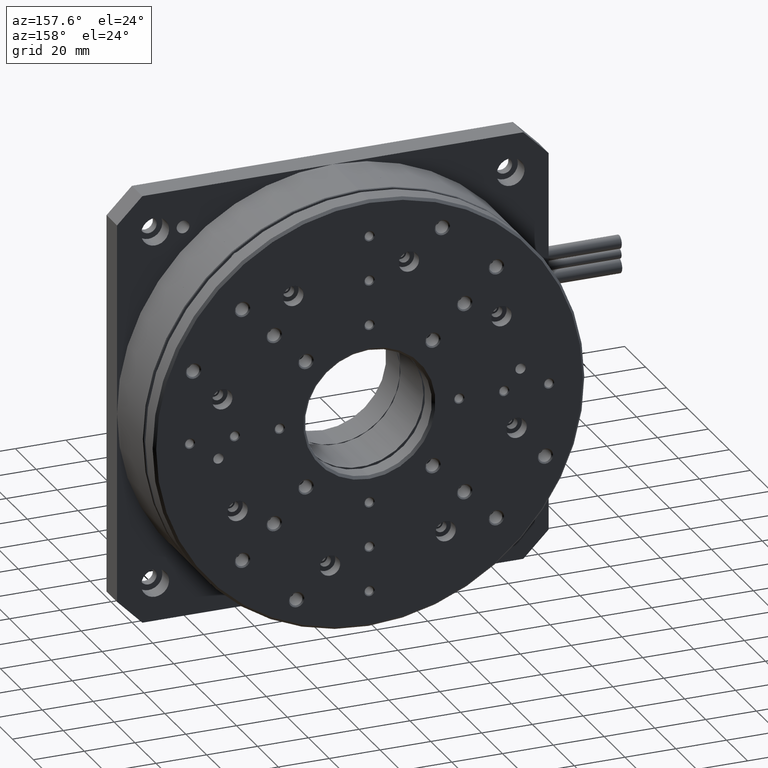
[diagram: clean part render]
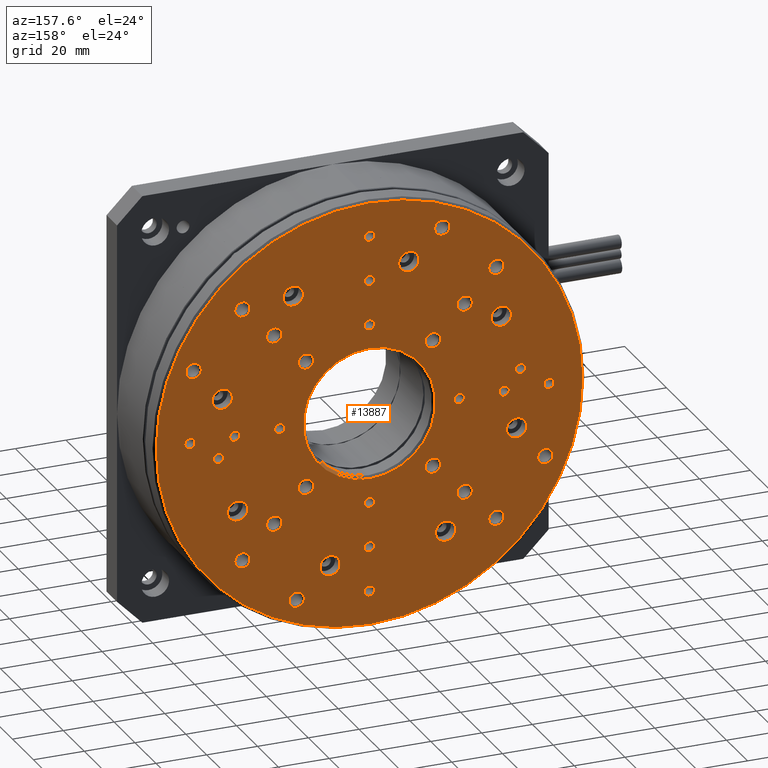
[diagram: same view with one face highlighted and labeled with its STEP entity id]
A machine part, auxiliary view. The second image highlights one B-rep face of the part: STEP entity #13887.
In plain terms, the highlighted planar face has unit normal (0, 1, 0).
Its self-contained STEP definition (entity closure, byte-faithful):
#53 = VERTEX_POINT ( 'NONE', #14290 ) ;
#79 = VERTEX_POINT ( 'NONE', #22916 ) ;
#128 = ORIENTED_EDGE ( 'NONE', *, *, #10757, .T. ) ;
#180 = VERTEX_POINT ( 'NONE', #1823 ) ;
#212 = DIRECTION ( 'NONE',  ( 0.0000000000000000000, 0.0000000000000000000, 1.000000000000000000 ) ) ;
#231 = ORIENTED_EDGE ( 'NONE', *, *, #16137, .F. ) ;
#264 = CARTESIAN_POINT ( 'NONE',  ( 155.7106781186547600, 45.00000000000000700, 85.00000000000017100 ) ) ;
#280 = ORIENTED_EDGE ( 'NONE', *, *, #21225, .F. ) ;
#285 = FACE_BOUND ( 'NONE', #13943, .T. ) ;
#391 = EDGE_LOOP ( 'NONE', ( #19720, #20750 ) ) ;
#403 = CARTESIAN_POINT ( 'NONE',  ( 69.47085729384916400, 45.00000000000000700, 142.9555495773443600 ) ) ;
#450 = AXIS2_PLACEMENT_3D ( 'NONE', #18312, #18140, #3748 ) ;
#481 = ORIENTED_EDGE ( 'NONE', *, *, #2432, .F. ) ;
#533 = CARTESIAN_POINT ( 'NONE',  ( 85.00000000000001400, 45.00000000000000700, 120.3553390593275200 ) ) ;
#545 = EDGE_CURVE ( 'NONE', #19818, #20732, #3655, .T. ) ;
#610 = VERTEX_POINT ( 'NONE', #19120 ) ;
#653 = CARTESIAN_POINT ( 'NONE',  ( 138.0330085889910400, 45.00000000000000700, 87.02500000000016200 ) ) ;
#680 = CARTESIAN_POINT ( 'NONE',  ( 155.7106781186547600, 45.00000000000000700, 82.97500000000017900 ) ) ;
#752 = CARTESIAN_POINT ( 'NONE',  ( 85.00000000000001400, 45.00000000000000700, 122.3803390593275300 ) ) ;
#787 = CARTESIAN_POINT ( 'NONE',  ( 27.04445042265586700, 45.00000000000000700, 69.47085729384909300 ) ) ;
#799 = CARTESIAN_POINT ( 'NONE',  ( 15.70903506165353900, 45.00000000000000700, 56.29874257261836600 ) ) ;
#814 = CARTESIAN_POINT ( 'NONE',  ( 115.0000000000001000, 45.00000000000000700, 136.9615242270664300 ) ) ;
#831 = FACE_BOUND ( 'NONE', #11761, .T. ) ;
#843 = CARTESIAN_POINT ( 'NONE',  ( 138.0330085889910400, 45.00000000000000700, 82.97500000000016500 ) ) ;
#847 = EDGE_CURVE ( 'NONE', #10658, #13085, #8644, .T. ) ;
#848 = DIRECTION ( 'NONE',  ( 0.0000000000000000000, 0.0000000000000000000, 1.000000000000000000 ) ) ;
#863 = CIRCLE ( 'NONE', #11323, 3.999999999999989800 ) ;
#930 = AXIS2_PLACEMENT_3D ( 'NONE', #14554, #2105, #3838 ) ;
#953 = CARTESIAN_POINT ( 'NONE',  ( 60.00000000000002100, 45.00000000000000700, 113.0250000000001500 ) ) ;
#954 = CARTESIAN_POINT ( 'NONE',  ( 113.7012574273817500, 45.00000000000000700, 15.70903506165369200 ) ) ;
#960 = CIRCLE ( 'NONE', #10569, 3.024999999999999900 ) ;
#962 = CARTESIAN_POINT ( 'NONE',  ( 85.00000000000001400, 45.00000000000000700, 120.3553390593275200 ) ) ;
#967 = AXIS2_PLACEMENT_3D ( 'NONE', #7008, #13977, #16247 ) ;
#981 = CIRCLE ( 'NONE', #19190, 2.024999999999999000 ) ;
#984 = EDGE_CURVE ( 'NONE', #13085, #10658, #11907, .T. ) ;
#1012 = EDGE_LOOP ( 'NONE', ( #16376, #12469 ) ) ;
#1013 = VERTEX_POINT ( 'NONE', #6773 ) ;
#1036 = DIRECTION ( 'NONE',  ( -0.0000000000000000000, 1.000000000000000000, -0.0000000000000000000 ) ) ;
#1075 = VERTEX_POINT ( 'NONE', #12408 ) ;
#1109 = CIRCLE ( 'NONE', #5869, 2.024999999999999000 ) ;
#1164 = CIRCLE ( 'NONE', #12219, 3.999999999999996400 ) ;
#1196 = CARTESIAN_POINT ( 'NONE',  ( 47.49999999999987200, 45.00000000000000700, 122.5000000000001100 ) ) ;
#1218 = DIRECTION ( 'NONE',  ( 0.0000000000000000000, 0.0000000000000000000, 1.000000000000000000 ) ) ;
#1223 = AXIS2_PLACEMENT_3D ( 'NONE', #8645, #17439, #15642 ) ;
#1348 = EDGE_CURVE ( 'NONE', #13677, #13671, #17161, .T. ) ;
#1357 = CARTESIAN_POINT ( 'NONE',  ( 85.00000000000001400, 45.00000000000000700, 85.00000000000014200 ) ) ;
#1382 = AXIS2_PLACEMENT_3D ( 'NONE', #9498, #4348, #5838 ) ;
#1385 = CIRCLE ( 'NONE', #13728, 2.024999999999999000 ) ;
#1421 = EDGE_CURVE ( 'NONE', #9537, #7804, #2354, .T. ) ;
#1535 = CARTESIAN_POINT ( 'NONE',  ( 142.9555495773442700, 45.00000000000000700, 100.5291427061507900 ) ) ;
#1540 = CIRCLE ( 'NONE', #3144, 3.024999999999999900 ) ;
#1542 = CIRCLE ( 'NONE', #12870, 3.024999999999999900 ) ;
#1664 = DIRECTION ( 'NONE',  ( 0.0000000000000000000, 0.0000000000000000000, 1.000000000000000000 ) ) ;
#1724 = EDGE_CURVE ( 'NONE', #19165, #9461, #8517, .T. ) ;
#1757 = DIRECTION ( 'NONE',  ( 0.0000000000000000000, 0.0000000000000000000, 1.000000000000000000 ) ) ;
#1823 = CARTESIAN_POINT ( 'NONE',  ( 135.0000000000000000, 45.00000000000000700, 31.97500000000014400 ) ) ;
#1852 = VERTEX_POINT ( 'NONE', #8083 ) ;
#1898 = AXIS2_PLACEMENT_3D ( 'NONE', #11731, #11665, #17065 ) ;
#1906 = EDGE_CURVE ( 'NONE', #11159, #79, #17952, .T. ) ;
#1958 = FACE_BOUND ( 'NONE', #20375, .T. ) ;
#1997 = CARTESIAN_POINT ( 'NONE',  ( 122.5000000000000900, 45.00000000000000700, 47.50000000000011400 ) ) ;
#2105 = DIRECTION ( 'NONE',  ( -0.0000000000000000000, 1.000000000000000000, -0.0000000000000000000 ) ) ;
#2111 = CIRCLE ( 'NONE', #3927, 3.024999999999999900 ) ;
#2209 = EDGE_CURVE ( 'NONE', #7804, #9537, #1109, .T. ) ;
#2227 = CARTESIAN_POINT ( 'NONE',  ( 122.5000000000000900, 45.00000000000000700, 44.47500000000011500 ) ) ;
#2296 = EDGE_CURVE ( 'NONE', #14961, #20285, #12312, .T. ) ;
#2354 = CIRCLE ( 'NONE', #15758, 2.024999999999999000 ) ;
#2428 = VERTEX_POINT ( 'NONE', #2558 ) ;
#2432 = EDGE_CURVE ( 'NONE', #12700, #13351, #23131, .T. ) ;
#2462 = AXIS2_PLACEMENT_3D ( 'NONE', #17031, #15687, #1664 ) ;
#2500 = EDGE_CURVE ( 'NONE', #5967, #7257, #17613, .T. ) ;
#2545 = DIRECTION ( 'NONE',  ( -0.0000000000000000000, 1.000000000000000000, -0.0000000000000000000 ) ) ;
#2558 = CARTESIAN_POINT ( 'NONE',  ( 110.0000000000000100, 45.00000000000000700, 56.97500000000013600 ) ) ;
#2623 = VERTEX_POINT ( 'NONE', #7134 ) ;
#2661 = DIRECTION ( 'NONE',  ( -0.0000000000000000000, 1.000000000000000000, -0.0000000000000000000 ) ) ;
#2700 = EDGE_LOOP ( 'NONE', ( #23175, #481 ) ) ;
#2736 = EDGE_CURVE ( 'NONE', #7439, #1075, #8637, .T. ) ;
#2788 = DIRECTION ( 'NONE',  ( 0.0000000000000000000, 0.0000000000000000000, 1.000000000000000000 ) ) ;
#2790 = CIRCLE ( 'NONE', #7291, 2.024999999999999000 ) ;
#2793 = DIRECTION ( 'NONE',  ( 0.0000000000000000000, 0.0000000000000000000, 1.000000000000000000 ) ) ;
#2796 = CARTESIAN_POINT ( 'NONE',  ( 154.2909649383464900, 45.00000000000000700, 116.7262574273819400 ) ) ;
#2860 = DIRECTION ( 'NONE',  ( 0.0000000000000000000, 0.0000000000000000000, 1.000000000000000000 ) ) ;
#2865 = CARTESIAN_POINT ( 'NONE',  ( 85.00000000000001400, 45.00000000000000700, 85.00000000000014200 ) ) ;
#2869 = AXIS2_PLACEMENT_3D ( 'NONE', #4977, #5141, #3279 ) ;
#2875 = DIRECTION ( 'NONE',  ( 0.0000000000000000000, 0.0000000000000000000, 1.000000000000000000 ) ) ;
#2906 = DIRECTION ( 'NONE',  ( -0.0000000000000000000, 1.000000000000000000, -0.0000000000000000000 ) ) ;
#2912 = EDGE_CURVE ( 'NONE', #22094, #5384, #863, .T. ) ;
#2945 = ORIENTED_EDGE ( 'NONE', *, *, #13293, .F. ) ;
#3044 = AXIS2_PLACEMENT_3D ( 'NONE', #2865, #15463, #22604 ) ;
#3071 = ORIENTED_EDGE ( 'NONE', *, *, #19645, .F. ) ;
#3078 = DIRECTION ( 'NONE',  ( -0.0000000000000000000, 1.000000000000000000, -0.0000000000000000000 ) ) ;
#3089 = FACE_BOUND ( 'NONE', #18592, .T. ) ;
#3090 = CARTESIAN_POINT ( 'NONE',  ( 85.00000000000002800, 45.00000000000000700, 138.0330085889911800 ) ) ;
#3104 = DIRECTION ( 'NONE',  ( -0.0000000000000000000, 1.000000000000000000, -0.0000000000000000000 ) ) ;
#3113 = DIRECTION ( 'NONE',  ( -0.0000000000000000000, 1.000000000000000000, -0.0000000000000000000 ) ) ;
#3119 = CIRCLE ( 'NONE', #21943, 2.024999999999999000 ) ;
#3144 = AXIS2_PLACEMENT_3D ( 'NONE', #15172, #13294, #4363 ) ;
#3159 = ORIENTED_EDGE ( 'NONE', *, *, #16001, .T. ) ;
#3241 = AXIS2_PLACEMENT_3D ( 'NONE', #4075, #14324, #12595 ) ;
#3279 = DIRECTION ( 'NONE',  ( 0.0000000000000000000, 0.0000000000000000000, 1.000000000000000000 ) ) ;
#3285 = AXIS2_PLACEMENT_3D ( 'NONE', #20284, #6168, #848 ) ;
#3320 = EDGE_CURVE ( 'NONE', #12052, #9029, #16745, .T. ) ;
#3343 = DIRECTION ( 'NONE',  ( 0.0000000000000000000, 1.000000000000000000, 0.0000000000000000000 ) ) ;
#3366 = FACE_BOUND ( 'NONE', #14166, .T. ) ;
#3406 = VERTEX_POINT ( 'NONE', #752 ) ;
#3480 = DIRECTION ( 'NONE',  ( -0.0000000000000000000, 1.000000000000000000, -0.0000000000000000000 ) ) ;
#3577 = DIRECTION ( 'NONE',  ( -0.0000000000000000000, 1.000000000000000000, -0.0000000000000000000 ) ) ;
#3583 = ORIENTED_EDGE ( 'NONE', *, *, #8347, .F. ) ;
#3611 = DIRECTION ( 'NONE',  ( 0.0000000000000000000, 0.0000000000000000000, 1.000000000000000000 ) ) ;
#3622 = CARTESIAN_POINT ( 'NONE',  ( 85.00000000000001400, 45.00000000000000700, 49.64466094067278600 ) ) ;
#3655 = CIRCLE ( 'NONE', #10963, 3.024999999999999900 ) ;
#3658 = DIRECTION ( 'NONE',  ( -0.0000000000000000000, 1.000000000000000000, -0.0000000000000000000 ) ) ;
#3679 = EDGE_LOOP ( 'NONE', ( #9531, #14556 ) ) ;
#3748 = DIRECTION ( 'NONE',  ( 0.0000000000000000000, 0.0000000000000000000, 1.000000000000000000 ) ) ;
#3753 = CARTESIAN_POINT ( 'NONE',  ( 85.00000000000001400, 45.00000000000000700, 85.00000000000014200 ) ) ;
#3832 = EDGE_LOOP ( 'NONE', ( #14351, #8607 ) ) ;
#3838 = DIRECTION ( 'NONE',  ( 0.0000000000000000000, 0.0000000000000000000, 1.000000000000000000 ) ) ;
#3868 = CIRCLE ( 'NONE', #20031, 2.024999999999999000 ) ;
#3926 = FACE_BOUND ( 'NONE', #23197, .T. ) ;
#3927 = AXIS2_PLACEMENT_3D ( 'NONE', #4279, #16796, #11425 ) ;
#3959 = CARTESIAN_POINT ( 'NONE',  ( 144.4866916824286400, 45.00000000000000700, 77.16842846679698200 ) ) ;
#3980 = CARTESIAN_POINT ( 'NONE',  ( 135.0000000000000000, 45.00000000000000700, 135.0000000000001400 ) ) ;
#3983 = CIRCLE ( 'NONE', #10183, 3.999999999999996400 ) ;
#4026 = CARTESIAN_POINT ( 'NONE',  ( 122.5000000000000900, 45.00000000000000700, 50.52500000000011200 ) ) ;
#4075 = CARTESIAN_POINT ( 'NONE',  ( 35.00000000000000700, 45.00000000000000700, 35.00000000000014200 ) ) ;
#4097 = CIRCLE ( 'NONE', #4768, 3.024999999999999900 ) ;
#4115 = VERTEX_POINT ( 'NONE', #18588 ) ;
#4167 = CARTESIAN_POINT ( 'NONE',  ( 31.96699141100899100, 45.00000000000000700, 85.00000000000012800 ) ) ;
#4169 = VERTEX_POINT ( 'NONE', #20623 ) ;
#4210 = FACE_BOUND ( 'NONE', #1012, .T. ) ;
#4225 = CIRCLE ( 'NONE', #7877, 2.000000000000001800 ) ;
#4261 = DIRECTION ( 'NONE',  ( 0.0000000000000000000, 0.0000000000000000000, 1.000000000000000000 ) ) ;
#4279 = CARTESIAN_POINT ( 'NONE',  ( 47.49999999999987200, 45.00000000000000700, 47.50000000000012100 ) ) ;
#4287 = CARTESIAN_POINT ( 'NONE',  ( 85.00000000000002800, 45.00000000000000700, 14.28932188134540700 ) ) ;
#4328 = DIRECTION ( 'NONE',  ( 0.0000000000000000000, 0.0000000000000000000, 1.000000000000000000 ) ) ;
#4348 = DIRECTION ( 'NONE',  ( -0.0000000000000000000, -1.000000000000000000, -0.0000000000000000000 ) ) ;
#4363 = DIRECTION ( 'NONE',  ( 0.0000000000000000000, 0.0000000000000000000, 1.000000000000000000 ) ) ;
#4396 = AXIS2_PLACEMENT_3D ( 'NONE', #8262, #6506, #17153 ) ;
#4400 = AXIS2_PLACEMENT_3D ( 'NONE', #814, #13330, #6444 ) ;
#4437 = EDGE_CURVE ( 'NONE', #9414, #23000, #21793, .T. ) ;
#4461 = AXIS2_PLACEMENT_3D ( 'NONE', #22660, #8264, #15590 ) ;
#4466 = FACE_BOUND ( 'NONE', #6873, .T. ) ;
#4484 = EDGE_LOOP ( 'NONE', ( #6687, #15499 ) ) ;
#4494 = AXIS2_PLACEMENT_3D ( 'NONE', #16618, #18282, #20084 ) ;
#4506 = ORIENTED_EDGE ( 'NONE', *, *, #7885, .F. ) ;
#4564 = CIRCLE ( 'NONE', #4494, 2.024999999999999000 ) ;
#4637 = EDGE_CURVE ( 'NONE', #2428, #17279, #6912, .T. ) ;
#4655 = DIRECTION ( 'NONE',  ( -0.0000000000000000000, 1.000000000000000000, -0.0000000000000000000 ) ) ;
#4672 = EDGE_CURVE ( 'NONE', #18573, #1852, #16147, .T. ) ;
#4673 = AXIS2_PLACEMENT_3D ( 'NONE', #1196, #21009, #10377 ) ;
#4674 = CIRCLE ( 'NONE', #13899, 3.025000000000007000 ) ;
#4691 = DIRECTION ( 'NONE',  ( 0.0000000000000000000, 0.0000000000000000000, 1.000000000000000000 ) ) ;
#4711 = AXIS2_PLACEMENT_3D ( 'NONE', #13580, #4655, #2875 ) ;
#4723 = CIRCLE ( 'NONE', #7032, 2.024999999999999000 ) ;
#4768 = AXIS2_PLACEMENT_3D ( 'NONE', #5925, #7754, #6006 ) ;
#4792 = CARTESIAN_POINT ( 'NONE',  ( 35.00000000000000700, 45.00000000000000700, 131.9750000000001400 ) ) ;
#4799 = AXIS2_PLACEMENT_3D ( 'NONE', #9500, #11275, #18393 ) ;
#4827 = ORIENTED_EDGE ( 'NONE', *, *, #15560, .F. ) ;
#4855 = CARTESIAN_POINT ( 'NONE',  ( 54.99999999999993600, 45.00000000000000700, 33.03847577293387200 ) ) ;
#4873 = AXIS2_PLACEMENT_3D ( 'NONE', #3959, #21880, #6368 ) ;
#4874 = AXIS2_PLACEMENT_3D ( 'NONE', #14054, #3343, #17646 ) ;
#4885 = CIRCLE ( 'NONE', #19715, 3.024999999999999900 ) ;
#4892 = ORIENTED_EDGE ( 'NONE', *, *, #19551, .F. ) ;
#4977 = CARTESIAN_POINT ( 'NONE',  ( 35.00000000000000700, 45.00000000000000700, 135.0000000000001400 ) ) ;
#5029 = CIRCLE ( 'NONE', #4874, 2.000000000000001800 ) ;
#5032 = DIRECTION ( 'NONE',  ( -0.0000000000000000000, 1.000000000000000000, -0.0000000000000000000 ) ) ;
#5033 = EDGE_CURVE ( 'NONE', #17848, #22119, #8293, .T. ) ;
#5092 = VERTEX_POINT ( 'NONE', #14845 ) ;
#5141 = DIRECTION ( 'NONE',  ( -0.0000000000000000000, 1.000000000000000000, -0.0000000000000000000 ) ) ;
#5153 = CARTESIAN_POINT ( 'NONE',  ( 25.51330831757140400, 45.00000000000000700, 92.83157153320326000 ) ) ;
#5205 = EDGE_LOOP ( 'NONE', ( #23041, #13305 ) ) ;
#5215 = CARTESIAN_POINT ( 'NONE',  ( 25.51330831757140400, 45.00000000000000700, 90.83157153320326000 ) ) ;
#5286 = CARTESIAN_POINT ( 'NONE',  ( 60.00000000000002800, 45.00000000000000700, 63.02500000000013400 ) ) ;
#5287 = ORIENTED_EDGE ( 'NONE', *, *, #11362, .F. ) ;
#5354 = CARTESIAN_POINT ( 'NONE',  ( 110.0000000000000100, 45.00000000000000700, 60.00000000000013500 ) ) ;
#5384 = VERTEX_POINT ( 'NONE', #23066 ) ;
#5437 = VERTEX_POINT ( 'NONE', #12558 ) ;
#5456 = AXIS2_PLACEMENT_3D ( 'NONE', #8087, #2906, #4691 ) ;
#5468 = EDGE_LOOP ( 'NONE', ( #13880, #14780 ) ) ;
#5497 = CARTESIAN_POINT ( 'NONE',  ( 56.29874257261823100, 45.00000000000000700, 157.3159649383466400 ) ) ;
#5509 = DIRECTION ( 'NONE',  ( -0.0000000000000000000, 1.000000000000000000, -0.0000000000000000000 ) ) ;
#5532 = DIRECTION ( 'NONE',  ( -0.0000000000000000000, -1.000000000000000000, -0.0000000000000000000 ) ) ;
#5573 = CIRCLE ( 'NONE', #16333, 3.024999999999999900 ) ;
#5584 = FACE_BOUND ( 'NONE', #22151, .T. ) ;
#5589 = EDGE_LOOP ( 'NONE', ( #11351, #2945 ) ) ;
#5680 = DIRECTION ( 'NONE',  ( 0.0000000000000000000, 0.0000000000000000000, 1.000000000000000000 ) ) ;
#5698 = CARTESIAN_POINT ( 'NONE',  ( 49.64466094067266500, 45.00000000000000700, 85.00000000000012800 ) ) ;
#5726 = CARTESIAN_POINT ( 'NONE',  ( 60.00000000000002800, 45.00000000000000700, 60.00000000000012800 ) ) ;
#5776 = DIRECTION ( 'NONE',  ( 0.0000000000000000000, 0.0000000000000000000, 1.000000000000000000 ) ) ;
#5838 = DIRECTION ( 'NONE',  ( 0.0000000000000000000, 0.0000000000000000000, 1.000000000000000000 ) ) ;
#5869 = AXIS2_PLACEMENT_3D ( 'NONE', #12754, #16188, #17986 ) ;
#5925 = CARTESIAN_POINT ( 'NONE',  ( 56.29874257261823100, 45.00000000000000700, 154.2909649383466300 ) ) ;
#5944 = ORIENTED_EDGE ( 'NONE', *, *, #17129, .F. ) ;
#5959 = DIRECTION ( 'NONE',  ( -0.0000000000000000000, 1.000000000000000000, -0.0000000000000000000 ) ) ;
#5967 = VERTEX_POINT ( 'NONE', #19282 ) ;
#6006 = DIRECTION ( 'NONE',  ( 0.0000000000000000000, 0.0000000000000000000, 1.000000000000000000 ) ) ;
#6018 = AXIS2_PLACEMENT_3D ( 'NONE', #799, #9756, #9671 ) ;
#6035 = CARTESIAN_POINT ( 'NONE',  ( 120.3553390593273900, 45.00000000000000700, 87.02500000000017600 ) ) ;
#6060 = CARTESIAN_POINT ( 'NONE',  ( 110.0000000000000100, 45.00000000000000700, 106.9750000000001400 ) ) ;
#6115 = ORIENTED_EDGE ( 'NONE', *, *, #1348, .F. ) ;
#6153 = CARTESIAN_POINT ( 'NONE',  ( 142.9555495773442700, 45.00000000000000700, 100.5291427061507900 ) ) ;
#6168 = DIRECTION ( 'NONE',  ( -0.0000000000000000000, 1.000000000000000000, -0.0000000000000000000 ) ) ;
#6170 = DIRECTION ( 'NONE',  ( 0.0000000000000000000, 0.0000000000000000000, 1.000000000000000000 ) ) ;
#6175 = DIRECTION ( 'NONE',  ( 0.0000000000000000000, 0.0000000000000000000, 1.000000000000000000 ) ) ;
#6251 = DIRECTION ( 'NONE',  ( -0.0000000000000000000, 1.000000000000000000, -0.0000000000000000000 ) ) ;
#6257 = EDGE_CURVE ( 'NONE', #21135, #10573, #5573, .T. ) ;
#6368 = DIRECTION ( 'NONE',  ( 0.0000000000000000000, 0.0000000000000000000, 1.000000000000000000 ) ) ;
#6371 = CIRCLE ( 'NONE', #4461, 2.024999999999999000 ) ;
#6379 = DIRECTION ( 'NONE',  ( -0.0000000000000000000, 1.000000000000000000, -0.0000000000000000000 ) ) ;
#6403 = EDGE_CURVE ( 'NONE', #13417, #19742, #4723, .T. ) ;
#6434 = DIRECTION ( 'NONE',  ( 0.0000000000000000000, 1.000000000000000000, 0.0000000000000000000 ) ) ;
#6444 = DIRECTION ( 'NONE',  ( 0.0000000000000000000, 0.0000000000000000000, 1.000000000000000000 ) ) ;
#6506 = DIRECTION ( 'NONE',  ( -0.0000000000000000000, 1.000000000000000000, -0.0000000000000000000 ) ) ;
#6607 = ORIENTED_EDGE ( 'NONE', *, *, #545, .F. ) ;
#6633 = CARTESIAN_POINT ( 'NONE',  ( 110.0000000000000100, 45.00000000000000700, 110.0000000000001400 ) ) ;
#6687 = ORIENTED_EDGE ( 'NONE', *, *, #2736, .F. ) ;
#6722 = FACE_BOUND ( 'NONE', #11703, .T. ) ;
#6773 = CARTESIAN_POINT ( 'NONE',  ( 85.00000000000001400, 45.00000000000000700, 51.66966094067278400 ) ) ;
#6865 = ORIENTED_EDGE ( 'NONE', *, *, #13086, .F. ) ;
#6873 = EDGE_LOOP ( 'NONE', ( #6115, #4827 ) ) ;
#6912 = CIRCLE ( 'NONE', #7466, 3.024999999999999900 ) ;
#6936 = EDGE_CURVE ( 'NONE', #13566, #21962, #11661, .T. ) ;
#6949 = DIRECTION ( 'NONE',  ( -0.0000000000000000000, 1.000000000000000000, -0.0000000000000000000 ) ) ;
#6979 = FACE_BOUND ( 'NONE', #9185, .T. ) ;
#6980 = EDGE_CURVE ( 'NONE', #20285, #14961, #10557, .T. ) ;
#7008 = CARTESIAN_POINT ( 'NONE',  ( 135.0000000000000000, 45.00000000000000700, 135.0000000000001400 ) ) ;
#7032 = AXIS2_PLACEMENT_3D ( 'NONE', #8990, #8830, #8754 ) ;
#7122 = EDGE_CURVE ( 'NONE', #15314, #4169, #10260, .T. ) ;
#7134 = CARTESIAN_POINT ( 'NONE',  ( 85.00000000000002800, 45.00000000000000700, 136.0080085889911700 ) ) ;
#7191 = EDGE_CURVE ( 'NONE', #1852, #18573, #2111, .T. ) ;
#7192 = CARTESIAN_POINT ( 'NONE',  ( 31.96699141100899100, 45.00000000000000700, 87.02500000000013400 ) ) ;
#7257 = VERTEX_POINT ( 'NONE', #13358 ) ;
#7291 = AXIS2_PLACEMENT_3D ( 'NONE', #962, #20628, #13331 ) ;
#7338 = EDGE_CURVE ( 'NONE', #18134, #13045, #4885, .T. ) ;
#7343 = DIRECTION ( 'NONE',  ( 0.0000000000000000000, 0.0000000000000000000, 1.000000000000000000 ) ) ;
#7378 = CARTESIAN_POINT ( 'NONE',  ( 155.7106781186547600, 45.00000000000000700, 87.02500000000017600 ) ) ;
#7381 = VERTEX_POINT ( 'NONE', #15313 ) ;
#7408 = CARTESIAN_POINT ( 'NONE',  ( 33.03847577293385000, 45.00000000000000700, 119.0000000000004100 ) ) ;
#7439 = VERTEX_POINT ( 'NONE', #8700 ) ;
#7449 = ORIENTED_EDGE ( 'NONE', *, *, #14770, .F. ) ;
#7453 = PLANE ( 'NONE',  #12834 ) ;
#7454 = EDGE_CURVE ( 'NONE', #180, #14911, #960, .T. ) ;
#7461 = VERTEX_POINT ( 'NONE', #5286 ) ;
#7466 = AXIS2_PLACEMENT_3D ( 'NONE', #18946, #11811, #22237 ) ;
#7469 = EDGE_LOOP ( 'NONE', ( #14408, #20297 ) ) ;
#7528 = VERTEX_POINT ( 'NONE', #12567 ) ;
#7559 = DIRECTION ( 'NONE',  ( -0.0000000000000000000, 1.000000000000000000, -0.0000000000000000000 ) ) ;
#7658 = EDGE_LOOP ( 'NONE', ( #16062, #20249 ) ) ;
#7674 = EDGE_LOOP ( 'NONE', ( #13359, #13766 ) ) ;
#7728 = ORIENTED_EDGE ( 'NONE', *, *, #19307, .F. ) ;
#7754 = DIRECTION ( 'NONE',  ( -0.0000000000000000000, 1.000000000000000000, -0.0000000000000000000 ) ) ;
#7804 = VERTEX_POINT ( 'NONE', #8107 ) ;
#7858 = FACE_BOUND ( 'NONE', #5589, .T. ) ;
#7877 = AXIS2_PLACEMENT_3D ( 'NONE', #5153, #23101, #3611 ) ;
#7885 = EDGE_CURVE ( 'NONE', #9433, #23257, #17440, .T. ) ;
#7941 = CIRCLE ( 'NONE', #22670, 84.00000000000005700 ) ;
#7953 = CARTESIAN_POINT ( 'NONE',  ( 85.00000000000002800, 45.00000000000000700, 138.0330085889911800 ) ) ;
#8055 = ORIENTED_EDGE ( 'NONE', *, *, #22183, .F. ) ;
#8083 = CARTESIAN_POINT ( 'NONE',  ( 47.49999999999987200, 45.00000000000000700, 50.52500000000011900 ) ) ;
#8087 = CARTESIAN_POINT ( 'NONE',  ( 100.5291427061504700, 45.00000000000000700, 27.04445042265583900 ) ) ;
#8100 = CARTESIAN_POINT ( 'NONE',  ( 85.00000000000001400, 45.00000000000000700, 29.94199141100911600 ) ) ;
#8104 = VERTEX_POINT ( 'NONE', #9599 ) ;
#8107 = CARTESIAN_POINT ( 'NONE',  ( 85.00000000000001400, 45.00000000000000700, 33.99199141100911700 ) ) ;
#8132 = FACE_BOUND ( 'NONE', #20702, .T. ) ;
#8216 = CARTESIAN_POINT ( 'NONE',  ( 85.00000000000002800, 45.00000000000000700, 16.31432188134540700 ) ) ;
#8262 = CARTESIAN_POINT ( 'NONE',  ( 100.5291427061504700, 45.00000000000000700, 27.04445042265583900 ) ) ;
#8264 = DIRECTION ( 'NONE',  ( -0.0000000000000000000, 1.000000000000000000, -0.0000000000000000000 ) ) ;
#8293 = CIRCLE ( 'NONE', #450, 2.024999999999999000 ) ;
#8306 = EDGE_CURVE ( 'NONE', #21198, #8104, #16012, .T. ) ;
#8347 = EDGE_CURVE ( 'NONE', #14063, #4115, #1164, .T. ) ;
#8361 = CARTESIAN_POINT ( 'NONE',  ( 100.5291427061504700, 45.00000000000000700, 31.04445042265583900 ) ) ;
#8423 = CIRCLE ( 'NONE', #15027, 3.024999999999999900 ) ;
#8436 = ORIENTED_EDGE ( 'NONE', *, *, #16489, .F. ) ;
#8437 = FACE_BOUND ( 'NONE', #4484, .T. ) ;
#8517 = CIRCLE ( 'NONE', #12326, 3.024999999999999900 ) ;
#8544 = ORIENTED_EDGE ( 'NONE', *, *, #7122, .F. ) ;
#8549 = CARTESIAN_POINT ( 'NONE',  ( 122.5000000000000900, 45.00000000000000700, 122.5000000000001100 ) ) ;
#8552 = EDGE_CURVE ( 'NONE', #10471, #14656, #4225, .T. ) ;
#8562 = ORIENTED_EDGE ( 'NONE', *, *, #20818, .F. ) ;
#8578 = DIRECTION ( 'NONE',  ( -0.0000000000000000000, 1.000000000000000000, -0.0000000000000000000 ) ) ;
#8607 = ORIENTED_EDGE ( 'NONE', *, *, #13288, .F. ) ;
#8631 = DIRECTION ( 'NONE',  ( 0.0000000000000000000, 0.0000000000000000000, 1.000000000000000000 ) ) ;
#8637 = CIRCLE ( 'NONE', #14152, 4.000000000000003600 ) ;
#8644 = CIRCLE ( 'NONE', #14257, 3.024999999999999900 ) ;
#8645 = CARTESIAN_POINT ( 'NONE',  ( 120.3553390593273900, 45.00000000000000700, 85.00000000000017100 ) ) ;
#8671 = CARTESIAN_POINT ( 'NONE',  ( 33.03847577293385000, 45.00000000000000700, 115.0000000000004100 ) ) ;
#8700 = CARTESIAN_POINT ( 'NONE',  ( 69.47085729384916400, 45.00000000000000700, 146.9555495773443600 ) ) ;
#8754 = DIRECTION ( 'NONE',  ( 0.0000000000000000000, 0.0000000000000000000, 1.000000000000000000 ) ) ;
#8830 = DIRECTION ( 'NONE',  ( -0.0000000000000000000, 1.000000000000000000, -0.0000000000000000000 ) ) ;
#8933 = EDGE_LOOP ( 'NONE', ( #17906, #20057 ) ) ;
#8990 = CARTESIAN_POINT ( 'NONE',  ( 138.0330085889910400, 45.00000000000000700, 85.00000000000015600 ) ) ;
#8999 = ORIENTED_EDGE ( 'NONE', *, *, #6257, .F. ) ;
#9002 = EDGE_CURVE ( 'NONE', #22658, #610, #16226, .T. ) ;
#9009 = AXIS2_PLACEMENT_3D ( 'NONE', #9245, #7559, #20088 ) ;
#9029 = VERTEX_POINT ( 'NONE', #11290 ) ;
#9140 = DIRECTION ( 'NONE',  ( -0.0000000000000000000, 1.000000000000000000, -0.0000000000000000000 ) ) ;
#9185 = EDGE_LOOP ( 'NONE', ( #19971, #18904 ) ) ;
#9203 = CARTESIAN_POINT ( 'NONE',  ( 138.0330085889910400, 45.00000000000000700, 85.00000000000015600 ) ) ;
#9245 = CARTESIAN_POINT ( 'NONE',  ( 47.49999999999987200, 45.00000000000000700, 122.5000000000001100 ) ) ;
#9255 = CARTESIAN_POINT ( 'NONE',  ( 85.00000000000001400, 45.00000000000000700, 59.00000000000020600 ) ) ;
#9264 = EDGE_CURVE ( 'NONE', #17279, #2428, #19564, .T. ) ;
#9289 = FACE_BOUND ( 'NONE', #7469, .T. ) ;
#9343 = CARTESIAN_POINT ( 'NONE',  ( 47.49999999999987200, 45.00000000000000700, 44.47500000000011500 ) ) ;
#9372 = EDGE_LOOP ( 'NONE', ( #16573, #6865 ) ) ;
#9375 = EDGE_LOOP ( 'NONE', ( #18834, #20043 ) ) ;
#9379 = DIRECTION ( 'NONE',  ( 0.0000000000000000000, 0.0000000000000000000, 1.000000000000000000 ) ) ;
#9408 = CIRCLE ( 'NONE', #11253, 2.024999999999999000 ) ;
#9410 = CARTESIAN_POINT ( 'NONE',  ( 60.00000000000002100, 45.00000000000000700, 110.0000000000001600 ) ) ;
#9414 = VERTEX_POINT ( 'NONE', #12939 ) ;
#9429 = EDGE_CURVE ( 'NONE', #7461, #12482, #4674, .T. ) ;
#9433 = VERTEX_POINT ( 'NONE', #19928 ) ;
#9453 = EDGE_LOOP ( 'NONE', ( #4892, #15335 ) ) ;
#9460 = EDGE_LOOP ( 'NONE', ( #9984, #17759 ) ) ;
#9461 = VERTEX_POINT ( 'NONE', #2227 ) ;
#9498 = CARTESIAN_POINT ( 'NONE',  ( 85.00000000000001400, 45.00000000000000700, 85.00000000000014200 ) ) ;
#9500 = CARTESIAN_POINT ( 'NONE',  ( 56.29874257261823100, 45.00000000000000700, 154.2909649383466300 ) ) ;
#9523 = AXIS2_PLACEMENT_3D ( 'NONE', #8671, #3078, #10142 ) ;
#9531 = ORIENTED_EDGE ( 'NONE', *, *, #9429, .F. ) ;
#9537 = VERTEX_POINT ( 'NONE', #8100 ) ;
#9555 = AXIS2_PLACEMENT_3D ( 'NONE', #6153, #15002, #2793 ) ;
#9557 = EDGE_CURVE ( 'NONE', #21962, #13566, #13931, .T. ) ;
#9599 = CARTESIAN_POINT ( 'NONE',  ( 100.5291427061504700, 45.00000000000000700, 23.04445042265583900 ) ) ;
#9605 = DIRECTION ( 'NONE',  ( -0.0000000000000000000, 1.000000000000000000, -0.0000000000000000000 ) ) ;
#9610 = CARTESIAN_POINT ( 'NONE',  ( 35.00000000000000700, 45.00000000000000700, 135.0000000000001400 ) ) ;
#9646 = AXIS2_PLACEMENT_3D ( 'NONE', #9203, #21689, #16431 ) ;
#9658 = EDGE_CURVE ( 'NONE', #7528, #1013, #6371, .T. ) ;
#9660 = DIRECTION ( 'NONE',  ( -0.0000000000000000000, 1.000000000000000000, -0.0000000000000000000 ) ) ;
#9671 = DIRECTION ( 'NONE',  ( 0.0000000000000000000, 0.0000000000000000000, 1.000000000000000000 ) ) ;
#9681 = CARTESIAN_POINT ( 'NONE',  ( 35.00000000000000700, 45.00000000000000700, 38.02500000000014100 ) ) ;
#9744 = CARTESIAN_POINT ( 'NONE',  ( 142.9555495773442700, 45.00000000000000700, 104.5291427061507900 ) ) ;
#9756 = DIRECTION ( 'NONE',  ( -0.0000000000000000000, 1.000000000000000000, -0.0000000000000000000 ) ) ;
#9811 = DIRECTION ( 'NONE',  ( 0.0000000000000000000, 0.0000000000000000000, 1.000000000000000000 ) ) ;
#9828 = FACE_BOUND ( 'NONE', #2700, .T. ) ;
#9966 = ORIENTED_EDGE ( 'NONE', *, *, #1906, .F. ) ;
#9984 = ORIENTED_EDGE ( 'NONE', *, *, #22935, .F. ) ;
#10053 = DIRECTION ( 'NONE',  ( 0.0000000000000000000, 0.0000000000000000000, 1.000000000000000000 ) ) ;
#10086 = CARTESIAN_POINT ( 'NONE',  ( 154.2909649383464900, 45.00000000000000700, 113.7012574273819300 ) ) ;
#10092 = DIRECTION ( 'NONE',  ( -0.0000000000000000000, 1.000000000000000000, -0.0000000000000000000 ) ) ;
#10130 = CARTESIAN_POINT ( 'NONE',  ( 15.70903506165353900, 45.00000000000000700, 53.27374257261836700 ) ) ;
#10142 = DIRECTION ( 'NONE',  ( 0.0000000000000000000, 0.0000000000000000000, 1.000000000000000000 ) ) ;
#10149 = DIRECTION ( 'NONE',  ( 0.0000000000000000000, 0.0000000000000000000, 1.000000000000000000 ) ) ;
#10166 = DIRECTION ( 'NONE',  ( -0.0000000000000000000, 1.000000000000000000, -0.0000000000000000000 ) ) ;
#10168 = DIRECTION ( 'NONE',  ( 0.0000000000000000000, 0.0000000000000000000, 1.000000000000000000 ) ) ;
#10169 = CARTESIAN_POINT ( 'NONE',  ( 14.28932188134528200, 45.00000000000000700, 85.00000000000011400 ) ) ;
#10183 = AXIS2_PLACEMENT_3D ( 'NONE', #17757, #23272, #21380 ) ;
#10242 = CIRCLE ( 'NONE', #19260, 2.024999999999999000 ) ;
#10254 = DIRECTION ( 'NONE',  ( 0.0000000000000000000, 0.0000000000000000000, 1.000000000000000000 ) ) ;
#10260 = CIRCLE ( 'NONE', #4799, 3.024999999999999900 ) ;
#10282 = DIRECTION ( 'NONE',  ( -0.0000000000000000000, 1.000000000000000000, -0.0000000000000000000 ) ) ;
#10303 = EDGE_CURVE ( 'NONE', #79, #11159, #981, .T. ) ;
#10345 = CARTESIAN_POINT ( 'NONE',  ( 120.3553390593273900, 45.00000000000000700, 85.00000000000017100 ) ) ;
#10377 = DIRECTION ( 'NONE',  ( 0.0000000000000000000, 0.0000000000000000000, 1.000000000000000000 ) ) ;
#10383 = FACE_BOUND ( 'NONE', #9375, .T. ) ;
#10436 = CARTESIAN_POINT ( 'NONE',  ( 136.9615242270659800, 45.00000000000000700, 54.99999999999952400 ) ) ;
#10471 = VERTEX_POINT ( 'NONE', #20106 ) ;
#10554 = CARTESIAN_POINT ( 'NONE',  ( 14.28932188134528200, 45.00000000000000700, 87.02500000000011900 ) ) ;
#10557 = CIRCLE ( 'NONE', #15920, 25.99999999999994000 ) ;
#10569 = AXIS2_PLACEMENT_3D ( 'NONE', #12183, #21186, #21267 ) ;
#10573 = VERTEX_POINT ( 'NONE', #6060 ) ;
#10582 = CIRCLE ( 'NONE', #9646, 2.024999999999999000 ) ;
#10598 = AXIS2_PLACEMENT_3D ( 'NONE', #1997, #3577, #212 ) ;
#10614 = EDGE_CURVE ( 'NONE', #1075, #7439, #22545, .T. ) ;
#10652 = DIRECTION ( 'NONE',  ( 0.0000000000000000000, 0.0000000000000000000, 1.000000000000000000 ) ) ;
#10658 = VERTEX_POINT ( 'NONE', #18908 ) ;
#10685 = CIRCLE ( 'NONE', #3044, 84.00000000000005700 ) ;
#10757 = EDGE_CURVE ( 'NONE', #5092, #5437, #7941, .T. ) ;
#10761 = DIRECTION ( 'NONE',  ( 0.0000000000000000000, 0.0000000000000000000, 1.000000000000000000 ) ) ;
#10877 = ORIENTED_EDGE ( 'NONE', *, *, #13560, .F. ) ;
#10963 = AXIS2_PLACEMENT_3D ( 'NONE', #22963, #17463, #15670 ) ;
#10989 = AXIS2_PLACEMENT_3D ( 'NONE', #9610, #5959, #22108 ) ;
#11144 = DIRECTION ( 'NONE',  ( 0.0000000000000000000, -0.0000000000000000000, 1.000000000000000000 ) ) ;
#11159 = VERTEX_POINT ( 'NONE', #6035 ) ;
#11168 = ORIENTED_EDGE ( 'NONE', *, *, #19160, .F. ) ;
#11209 = EDGE_LOOP ( 'NONE', ( #8999, #20060 ) ) ;
#11253 = AXIS2_PLACEMENT_3D ( 'NONE', #12503, #5509, #7343 ) ;
#11275 = DIRECTION ( 'NONE',  ( -0.0000000000000000000, 1.000000000000000000, -0.0000000000000000000 ) ) ;
#11290 = CARTESIAN_POINT ( 'NONE',  ( 135.0000000000000000, 45.00000000000000700, 131.9750000000001400 ) ) ;
#11310 = DIRECTION ( 'NONE',  ( 0.0000000000000000000, 0.0000000000000000000, 1.000000000000000000 ) ) ;
#11323 = AXIS2_PLACEMENT_3D ( 'NONE', #787, #13304, #9811 ) ;
#11328 = EDGE_LOOP ( 'NONE', ( #21987, #8055 ) ) ;
#11334 = CIRCLE ( 'NONE', #6018, 3.024999999999999900 ) ;
#11351 = ORIENTED_EDGE ( 'NONE', *, *, #1724, .F. ) ;
#11362 = EDGE_CURVE ( 'NONE', #23257, #9433, #18485, .T. ) ;
#11425 = DIRECTION ( 'NONE',  ( 0.0000000000000000000, 0.0000000000000000000, 1.000000000000000000 ) ) ;
#11471 = CARTESIAN_POINT ( 'NONE',  ( 113.7012574273817500, 45.00000000000000700, 18.73403506165369200 ) ) ;
#11489 = FACE_OUTER_BOUND ( 'NONE', #13839, .T. ) ;
#11499 = FACE_BOUND ( 'NONE', #17236, .T. ) ;
#11602 = CARTESIAN_POINT ( 'NONE',  ( 60.00000000000002800, 45.00000000000000700, 56.97500000000012900 ) ) ;
#11610 = EDGE_LOOP ( 'NONE', ( #8544, #3071 ) ) ;
#11661 = CIRCLE ( 'NONE', #18773, 3.024999999999999900 ) ;
#11665 = DIRECTION ( 'NONE',  ( -0.0000000000000000000, 1.000000000000000000, -0.0000000000000000000 ) ) ;
#11703 = EDGE_LOOP ( 'NONE', ( #10877, #280 ) ) ;
#11722 = CARTESIAN_POINT ( 'NONE',  ( 135.0000000000000000, 45.00000000000000700, 138.0250000000001500 ) ) ;
#11731 = CARTESIAN_POINT ( 'NONE',  ( 85.00000000000000000, 45.00000000000000700, 155.7106781186549000 ) ) ;
#11761 = EDGE_LOOP ( 'NONE', ( #16337, #22283 ) ) ;
#11784 = EDGE_CURVE ( 'NONE', #19742, #13417, #10582, .T. ) ;
#11810 = ORIENTED_EDGE ( 'NONE', *, *, #23231, .F. ) ;
#11811 = DIRECTION ( 'NONE',  ( -0.0000000000000000000, 1.000000000000000000, -0.0000000000000000000 ) ) ;
#11813 = EDGE_CURVE ( 'NONE', #5384, #22094, #18972, .T. ) ;
#11847 = CARTESIAN_POINT ( 'NONE',  ( 49.64466094067266500, 45.00000000000000700, 82.97500000000013600 ) ) ;
#11907 = CIRCLE ( 'NONE', #13941, 3.024999999999999900 ) ;
#12042 = FACE_BOUND ( 'NONE', #9372, .T. ) ;
#12047 = CARTESIAN_POINT ( 'NONE',  ( 122.5000000000000900, 45.00000000000000700, 125.5250000000001100 ) ) ;
#12052 = VERTEX_POINT ( 'NONE', #11722 ) ;
#12107 = ORIENTED_EDGE ( 'NONE', *, *, #19926, .F. ) ;
#12183 = CARTESIAN_POINT ( 'NONE',  ( 135.0000000000000000, 45.00000000000000700, 35.00000000000014200 ) ) ;
#12188 = AXIS2_PLACEMENT_3D ( 'NONE', #22986, #17634, #17793 ) ;
#12201 = CIRCLE ( 'NONE', #3285, 3.024999999999999900 ) ;
#12211 = CARTESIAN_POINT ( 'NONE',  ( 31.96699141100899100, 45.00000000000000700, 82.97500000000013600 ) ) ;
#12219 = AXIS2_PLACEMENT_3D ( 'NONE', #10436, #8578, #22867 ) ;
#12272 = CIRCLE ( 'NONE', #4396, 4.000000000000000000 ) ;
#12312 = CIRCLE ( 'NONE', #1382, 25.99999999999994000 ) ;
#12323 = EDGE_CURVE ( 'NONE', #22119, #17848, #22835, .T. ) ;
#12326 = AXIS2_PLACEMENT_3D ( 'NONE', #16528, #9660, #14876 ) ;
#12344 = CIRCLE ( 'NONE', #23250, 2.024999999999999000 ) ;
#12359 = AXIS2_PLACEMENT_3D ( 'NONE', #3980, #19957, #5680 ) ;
#12408 = CARTESIAN_POINT ( 'NONE',  ( 69.47085729384916400, 45.00000000000000700, 138.9555495773443600 ) ) ;
#12417 = VERTEX_POINT ( 'NONE', #9744 ) ;
#12436 = EDGE_CURVE ( 'NONE', #18305, #20890, #10242, .T. ) ;
#12469 = ORIENTED_EDGE ( 'NONE', *, *, #16547, .F. ) ;
#12482 = VERTEX_POINT ( 'NONE', #11602 ) ;
#12503 = CARTESIAN_POINT ( 'NONE',  ( 31.96699141100899100, 45.00000000000000700, 85.00000000000012800 ) ) ;
#12558 = CARTESIAN_POINT ( 'NONE',  ( 85.00000000000001400, 45.00000000000000700, 1.000000000000098100 ) ) ;
#12567 = CARTESIAN_POINT ( 'NONE',  ( 85.00000000000001400, 45.00000000000000700, 47.61966094067278700 ) ) ;
#12595 = DIRECTION ( 'NONE',  ( 0.0000000000000000000, 0.0000000000000000000, 1.000000000000000000 ) ) ;
#12607 = FACE_BOUND ( 'NONE', #5205, .T. ) ;
#12697 = DIRECTION ( 'NONE',  ( 0.0000000000000000000, 0.0000000000000000000, 1.000000000000000000 ) ) ;
#12700 = VERTEX_POINT ( 'NONE', #19414 ) ;
#12703 = VERTEX_POINT ( 'NONE', #21215 ) ;
#12754 = CARTESIAN_POINT ( 'NONE',  ( 85.00000000000001400, 45.00000000000000700, 31.96699141100911500 ) ) ;
#12780 = DIRECTION ( 'NONE',  ( -0.0000000000000000000, 1.000000000000000000, -0.0000000000000000000 ) ) ;
#12834 = AXIS2_PLACEMENT_3D ( 'NONE', #16215, #18173, #11144 ) ;
#12866 = CARTESIAN_POINT ( 'NONE',  ( 85.00000000000002800, 45.00000000000000700, 140.0580085889911900 ) ) ;
#12870 = AXIS2_PLACEMENT_3D ( 'NONE', #6633, #3113, #10254 ) ;
#12875 = CARTESIAN_POINT ( 'NONE',  ( 110.0000000000000100, 45.00000000000000700, 63.02500000000013400 ) ) ;
#12878 = FACE_BOUND ( 'NONE', #9453, .T. ) ;
#12906 = DIRECTION ( 'NONE',  ( 0.0000000000000000000, 0.0000000000000000000, 1.000000000000000000 ) ) ;
#12939 = CARTESIAN_POINT ( 'NONE',  ( 85.00000000000000000, 45.00000000000000700, 157.7356781186549000 ) ) ;
#13037 = VERTEX_POINT ( 'NONE', #16719 ) ;
#13045 = VERTEX_POINT ( 'NONE', #19010 ) ;
#13053 = DIRECTION ( 'NONE',  ( 0.0000000000000000000, 0.0000000000000000000, 1.000000000000000000 ) ) ;
#13085 = VERTEX_POINT ( 'NONE', #2796 ) ;
#13086 = EDGE_CURVE ( 'NONE', #53, #18922, #15183, .T. ) ;
#13133 = DIRECTION ( 'NONE',  ( -0.0000000000000000000, 1.000000000000000000, -0.0000000000000000000 ) ) ;
#13160 = DIRECTION ( 'NONE',  ( 0.0000000000000000000, 0.0000000000000000000, 1.000000000000000000 ) ) ;
#13196 = CARTESIAN_POINT ( 'NONE',  ( 27.04445042265586700, 45.00000000000000700, 73.47085729384907900 ) ) ;
#13288 = EDGE_CURVE ( 'NONE', #9029, #12052, #19646, .T. ) ;
#13293 = EDGE_CURVE ( 'NONE', #9461, #19165, #17383, .T. ) ;
#13294 = DIRECTION ( 'NONE',  ( -0.0000000000000000000, 1.000000000000000000, -0.0000000000000000000 ) ) ;
#13304 = DIRECTION ( 'NONE',  ( -0.0000000000000000000, 1.000000000000000000, -0.0000000000000000000 ) ) ;
#13305 = ORIENTED_EDGE ( 'NONE', *, *, #1421, .F. ) ;
#13330 = DIRECTION ( 'NONE',  ( -0.0000000000000000000, 1.000000000000000000, -0.0000000000000000000 ) ) ;
#13331 = DIRECTION ( 'NONE',  ( 0.0000000000000000000, 0.0000000000000000000, 1.000000000000000000 ) ) ;
#13351 = VERTEX_POINT ( 'NONE', #7408 ) ;
#13358 = CARTESIAN_POINT ( 'NONE',  ( 47.49999999999987200, 45.00000000000000700, 125.5250000000001100 ) ) ;
#13359 = ORIENTED_EDGE ( 'NONE', *, *, #9002, .F. ) ;
#13368 = CARTESIAN_POINT ( 'NONE',  ( 110.0000000000000100, 45.00000000000000700, 110.0000000000001400 ) ) ;
#13417 = VERTEX_POINT ( 'NONE', #653 ) ;
#13426 = FACE_BOUND ( 'NONE', #11209, .T. ) ;
#13428 = CARTESIAN_POINT ( 'NONE',  ( 49.64466094067266500, 45.00000000000000700, 87.02500000000013400 ) ) ;
#13519 = EDGE_CURVE ( 'NONE', #21118, #15901, #15969, .T. ) ;
#13560 = EDGE_CURVE ( 'NONE', #15343, #2623, #1385, .T. ) ;
#13565 = EDGE_CURVE ( 'NONE', #3406, #12703, #2790, .T. ) ;
#13566 = VERTEX_POINT ( 'NONE', #11471 ) ;
#13580 = CARTESIAN_POINT ( 'NONE',  ( 33.03847577293385000, 45.00000000000000700, 115.0000000000004100 ) ) ;
#13608 = CARTESIAN_POINT ( 'NONE',  ( 47.49999999999987200, 45.00000000000000700, 47.50000000000012100 ) ) ;
#13671 = VERTEX_POINT ( 'NONE', #4792 ) ;
#13672 = DIRECTION ( 'NONE',  ( 0.0000000000000000000, 0.0000000000000000000, 1.000000000000000000 ) ) ;
#13677 = VERTEX_POINT ( 'NONE', #17467 ) ;
#13686 = CIRCLE ( 'NONE', #22456, 2.024999999999999000 ) ;
#13728 = AXIS2_PLACEMENT_3D ( 'NONE', #7953, #17169, #4328 ) ;
#13766 = ORIENTED_EDGE ( 'NONE', *, *, #16153, .F. ) ;
#13793 = ORIENTED_EDGE ( 'NONE', *, *, #5033, .F. ) ;
#13839 = EDGE_LOOP ( 'NONE', ( #3159, #128 ) ) ;
#13880 = ORIENTED_EDGE ( 'NONE', *, *, #13565, .F. ) ;
#13887 = ADVANCED_FACE ( 'NONE', ( #16251, #3926, #22976, #11499, #5584, #19898, #12878, #12607, #22407, #12042, #8132, #831, #18213, #6722, #1958, #3366, #20463, #285, #21838, #17085, #15678, #7858, #15120, #10383, #3089, #13426, #18769, #19333, #4466, #14568, #4210, #22716, #17923, #17625, #8437, #9828, #9289, #17081, #6979, #11489 ), #7453, .T. ) ;
#13899 = AXIS2_PLACEMENT_3D ( 'NONE', #5726, #20083, #11310 ) ;
#13901 = AXIS2_PLACEMENT_3D ( 'NONE', #23030, #14177, #10761 ) ;
#13910 = DIRECTION ( 'NONE',  ( -0.0000000000000000000, 1.000000000000000000, -0.0000000000000000000 ) ) ;
#13931 = CIRCLE ( 'NONE', #14661, 3.024999999999999900 ) ;
#13941 = AXIS2_PLACEMENT_3D ( 'NONE', #19145, #10166, #1218 ) ;
#13943 = EDGE_LOOP ( 'NONE', ( #13793, #16845 ) ) ;
#13977 = DIRECTION ( 'NONE',  ( -0.0000000000000000000, 1.000000000000000000, -0.0000000000000000000 ) ) ;
#13991 = EDGE_LOOP ( 'NONE', ( #20446, #17901 ) ) ;
#14054 = CARTESIAN_POINT ( 'NONE',  ( 25.51330831757140400, 45.00000000000000700, 92.83157153320326000 ) ) ;
#14058 = CARTESIAN_POINT ( 'NONE',  ( 60.00000000000002100, 45.00000000000000700, 106.9750000000001500 ) ) ;
#14063 = VERTEX_POINT ( 'NONE', #14802 ) ;
#14068 = CIRCLE ( 'NONE', #17704, 4.000000000000003600 ) ;
#14092 = ORIENTED_EDGE ( 'NONE', *, *, #2500, .F. ) ;
#14124 = AXIS2_PLACEMENT_3D ( 'NONE', #17868, #3480, #21412 ) ;
#14147 = CARTESIAN_POINT ( 'NONE',  ( 54.99999999999993600, 45.00000000000000700, 37.03847577293387200 ) ) ;
#14152 = AXIS2_PLACEMENT_3D ( 'NONE', #403, #9140, #12697 ) ;
#14159 = ORIENTED_EDGE ( 'NONE', *, *, #10303, .F. ) ;
#14166 = EDGE_LOOP ( 'NONE', ( #9966, #14159 ) ) ;
#14177 = DIRECTION ( 'NONE',  ( -0.0000000000000000000, 1.000000000000000000, -0.0000000000000000000 ) ) ;
#14206 = DIRECTION ( 'NONE',  ( 0.0000000000000000000, 0.0000000000000000000, 1.000000000000000000 ) ) ;
#14257 = AXIS2_PLACEMENT_3D ( 'NONE', #10086, #15080, #2788 ) ;
#14290 = CARTESIAN_POINT ( 'NONE',  ( 14.28932188134528200, 45.00000000000000700, 82.97500000000012200 ) ) ;
#14298 = CARTESIAN_POINT ( 'NONE',  ( 122.5000000000000900, 45.00000000000000700, 122.5000000000001100 ) ) ;
#14324 = DIRECTION ( 'NONE',  ( -0.0000000000000000000, 1.000000000000000000, -0.0000000000000000000 ) ) ;
#14351 = ORIENTED_EDGE ( 'NONE', *, *, #3320, .F. ) ;
#14408 = ORIENTED_EDGE ( 'NONE', *, *, #2912, .F. ) ;
#14414 = ORIENTED_EDGE ( 'NONE', *, *, #7338, .F. ) ;
#14433 = EDGE_CURVE ( 'NONE', #14911, #180, #12201, .T. ) ;
#14445 = ORIENTED_EDGE ( 'NONE', *, *, #20650, .F. ) ;
#14461 = EDGE_CURVE ( 'NONE', #13037, #16642, #1540, .T. ) ;
#14554 = CARTESIAN_POINT ( 'NONE',  ( 27.04445042265586700, 45.00000000000000700, 69.47085729384909300 ) ) ;
#14556 = ORIENTED_EDGE ( 'NONE', *, *, #19270, .F. ) ;
#14568 = FACE_BOUND ( 'NONE', #3832, .T. ) ;
#14634 = VERTEX_POINT ( 'NONE', #14147 ) ;
#14656 = VERTEX_POINT ( 'NONE', #5215 ) ;
#14661 = AXIS2_PLACEMENT_3D ( 'NONE', #954, #9605, #13160 ) ;
#14770 = EDGE_CURVE ( 'NONE', #20890, #18305, #9408, .T. ) ;
#14780 = ORIENTED_EDGE ( 'NONE', *, *, #22010, .F. ) ;
#14802 = CARTESIAN_POINT ( 'NONE',  ( 136.9615242270659800, 45.00000000000000700, 50.99999999999952400 ) ) ;
#14845 = CARTESIAN_POINT ( 'NONE',  ( 85.00000000000002800, 45.00000000000000700, 169.0000000000002000 ) ) ;
#14868 = AXIS2_PLACEMENT_3D ( 'NONE', #4855, #10282, #15272 ) ;
#14876 = DIRECTION ( 'NONE',  ( 0.0000000000000000000, 0.0000000000000000000, 1.000000000000000000 ) ) ;
#14911 = VERTEX_POINT ( 'NONE', #21967 ) ;
#14933 = EDGE_CURVE ( 'NONE', #20732, #19818, #21120, .T. ) ;
#14934 = DIRECTION ( 'NONE',  ( -0.0000000000000000000, 1.000000000000000000, -0.0000000000000000000 ) ) ;
#14940 = CARTESIAN_POINT ( 'NONE',  ( 110.0000000000000100, 45.00000000000000700, 113.0250000000001300 ) ) ;
#14961 = VERTEX_POINT ( 'NONE', #9255 ) ;
#15002 = DIRECTION ( 'NONE',  ( -0.0000000000000000000, 1.000000000000000000, -0.0000000000000000000 ) ) ;
#15027 = AXIS2_PLACEMENT_3D ( 'NONE', #19377, #5032, #17716 ) ;
#15056 = CARTESIAN_POINT ( 'NONE',  ( 85.00000000000001400, 45.00000000000000700, 31.96699141100911500 ) ) ;
#15080 = DIRECTION ( 'NONE',  ( -0.0000000000000000000, 1.000000000000000000, -0.0000000000000000000 ) ) ;
#15108 = ORIENTED_EDGE ( 'NONE', *, *, #14933, .F. ) ;
#15120 = FACE_BOUND ( 'NONE', #3679, .T. ) ;
#15172 = CARTESIAN_POINT ( 'NONE',  ( 15.70903506165353900, 45.00000000000000700, 56.29874257261836600 ) ) ;
#15183 = CIRCLE ( 'NONE', #22732, 2.024999999999999000 ) ;
#15272 = DIRECTION ( 'NONE',  ( 0.0000000000000000000, 0.0000000000000000000, 1.000000000000000000 ) ) ;
#15313 = CARTESIAN_POINT ( 'NONE',  ( 142.9555495773442700, 45.00000000000000700, 96.52914270615079300 ) ) ;
#15314 = VERTEX_POINT ( 'NONE', #5497 ) ;
#15335 = ORIENTED_EDGE ( 'NONE', *, *, #20414, .F. ) ;
#15343 = VERTEX_POINT ( 'NONE', #12866 ) ;
#15345 = EDGE_CURVE ( 'NONE', #18922, #53, #4564, .T. ) ;
#15391 = EDGE_LOOP ( 'NONE', ( #5287, #4506 ) ) ;
#15463 = DIRECTION ( 'NONE',  ( 0.0000000000000000000, 1.000000000000000000, 0.0000000000000000000 ) ) ;
#15471 = CIRCLE ( 'NONE', #21423, 3.025000000000007000 ) ;
#15489 = CIRCLE ( 'NONE', #14868, 3.999999999999996400 ) ;
#15499 = ORIENTED_EDGE ( 'NONE', *, *, #10614, .F. ) ;
#15531 = EDGE_CURVE ( 'NONE', #12417, #7381, #14068, .T. ) ;
#15560 = EDGE_CURVE ( 'NONE', #13671, #13677, #20244, .T. ) ;
#15590 = DIRECTION ( 'NONE',  ( 0.0000000000000000000, 0.0000000000000000000, 1.000000000000000000 ) ) ;
#15637 = CIRCLE ( 'NONE', #2462, 2.024999999999999000 ) ;
#15642 = DIRECTION ( 'NONE',  ( 0.0000000000000000000, 0.0000000000000000000, 1.000000000000000000 ) ) ;
#15670 = DIRECTION ( 'NONE',  ( 0.0000000000000000000, 0.0000000000000000000, 1.000000000000000000 ) ) ;
#15678 = FACE_BOUND ( 'NONE', #7658, .T. ) ;
#15687 = DIRECTION ( 'NONE',  ( -0.0000000000000000000, 1.000000000000000000, -0.0000000000000000000 ) ) ;
#15758 = AXIS2_PLACEMENT_3D ( 'NONE', #15056, #1036, #18739 ) ;
#15901 = VERTEX_POINT ( 'NONE', #17032 ) ;
#15920 = AXIS2_PLACEMENT_3D ( 'NONE', #3753, #5532, #19880 ) ;
#15969 = CIRCLE ( 'NONE', #4873, 2.000000000000001800 ) ;
#16001 = EDGE_CURVE ( 'NONE', #5437, #5092, #10685, .T. ) ;
#16012 = CIRCLE ( 'NONE', #5456, 4.000000000000000000 ) ;
#16049 = DIRECTION ( 'NONE',  ( 0.0000000000000000000, 0.0000000000000000000, 1.000000000000000000 ) ) ;
#16062 = ORIENTED_EDGE ( 'NONE', *, *, #7191, .F. ) ;
#16119 = ORIENTED_EDGE ( 'NONE', *, *, #14461, .F. ) ;
#16137 = EDGE_CURVE ( 'NONE', #14634, #17828, #16227, .T. ) ;
#16147 = CIRCLE ( 'NONE', #17064, 3.024999999999999900 ) ;
#16153 = EDGE_CURVE ( 'NONE', #610, #22658, #8423, .T. ) ;
#16188 = DIRECTION ( 'NONE',  ( -0.0000000000000000000, 1.000000000000000000, -0.0000000000000000000 ) ) ;
#16215 = CARTESIAN_POINT ( 'NONE',  ( 85.00000000000001400, 45.00000000000000700, 85.00000000000014200 ) ) ;
#16226 = CIRCLE ( 'NONE', #3241, 3.024999999999999900 ) ;
#16227 = CIRCLE ( 'NONE', #12188, 3.999999999999996400 ) ;
#16235 = DIRECTION ( 'NONE',  ( -0.0000000000000000000, 1.000000000000000000, -0.0000000000000000000 ) ) ;
#16247 = DIRECTION ( 'NONE',  ( 0.0000000000000000000, 0.0000000000000000000, 1.000000000000000000 ) ) ;
#16251 = FACE_BOUND ( 'NONE', #21303, .T. ) ;
#16329 = CIRCLE ( 'NONE', #9009, 3.024999999999999900 ) ;
#16333 = AXIS2_PLACEMENT_3D ( 'NONE', #13368, #6251, #6170 ) ;
#16337 = ORIENTED_EDGE ( 'NONE', *, *, #21768, .F. ) ;
#16339 = AXIS2_PLACEMENT_3D ( 'NONE', #20419, #2545, #4261 ) ;
#16340 = AXIS2_PLACEMENT_3D ( 'NONE', #14298, #3658, #1757 ) ;
#16376 = ORIENTED_EDGE ( 'NONE', *, *, #8306, .F. ) ;
#16431 = DIRECTION ( 'NONE',  ( 0.0000000000000000000, 0.0000000000000000000, 1.000000000000000000 ) ) ;
#16489 = EDGE_CURVE ( 'NONE', #15901, #21118, #17042, .T. ) ;
#16528 = CARTESIAN_POINT ( 'NONE',  ( 122.5000000000000900, 45.00000000000000700, 47.50000000000011400 ) ) ;
#16547 = EDGE_CURVE ( 'NONE', #8104, #21198, #12272, .T. ) ;
#16573 = ORIENTED_EDGE ( 'NONE', *, *, #15345, .F. ) ;
#16618 = CARTESIAN_POINT ( 'NONE',  ( 14.28932188134528200, 45.00000000000000700, 85.00000000000011400 ) ) ;
#16642 = VERTEX_POINT ( 'NONE', #10130 ) ;
#16719 = CARTESIAN_POINT ( 'NONE',  ( 15.70903506165353900, 45.00000000000000700, 59.32374257261837200 ) ) ;
#16745 = CIRCLE ( 'NONE', #12359, 3.024999999999999900 ) ;
#16796 = DIRECTION ( 'NONE',  ( -0.0000000000000000000, 1.000000000000000000, -0.0000000000000000000 ) ) ;
#16820 = CARTESIAN_POINT ( 'NONE',  ( 115.0000000000001000, 45.00000000000000700, 140.9615242270664300 ) ) ;
#16845 = ORIENTED_EDGE ( 'NONE', *, *, #12323, .F. ) ;
#16899 = VERTEX_POINT ( 'NONE', #13428 ) ;
#17031 = CARTESIAN_POINT ( 'NONE',  ( 49.64466094067266500, 45.00000000000000700, 85.00000000000012800 ) ) ;
#17032 = CARTESIAN_POINT ( 'NONE',  ( 144.4866916824286400, 45.00000000000000700, 75.16842846679698200 ) ) ;
#17042 = CIRCLE ( 'NONE', #22107, 2.000000000000001800 ) ;
#17064 = AXIS2_PLACEMENT_3D ( 'NONE', #13608, #2661, #6175 ) ;
#17065 = DIRECTION ( 'NONE',  ( 0.0000000000000000000, 0.0000000000000000000, 1.000000000000000000 ) ) ;
#17081 = FACE_BOUND ( 'NONE', #20550, .T. ) ;
#17085 = FACE_BOUND ( 'NONE', #391, .T. ) ;
#17129 = EDGE_CURVE ( 'NONE', #14656, #10471, #5029, .T. ) ;
#17153 = DIRECTION ( 'NONE',  ( 0.0000000000000000000, 0.0000000000000000000, 1.000000000000000000 ) ) ;
#17161 = CIRCLE ( 'NONE', #10989, 3.024999999999999900 ) ;
#17169 = DIRECTION ( 'NONE',  ( -0.0000000000000000000, 1.000000000000000000, -0.0000000000000000000 ) ) ;
#17236 = EDGE_LOOP ( 'NONE', ( #16119, #14445 ) ) ;
#17279 = VERTEX_POINT ( 'NONE', #12875 ) ;
#17383 = CIRCLE ( 'NONE', #10598, 3.024999999999999900 ) ;
#17407 = CARTESIAN_POINT ( 'NONE',  ( 85.00000000000001400, 45.00000000000000700, 111.0000000000000900 ) ) ;
#17439 = DIRECTION ( 'NONE',  ( -0.0000000000000000000, 1.000000000000000000, -0.0000000000000000000 ) ) ;
#17440 = CIRCLE ( 'NONE', #4400, 4.000000000000003600 ) ;
#17463 = DIRECTION ( 'NONE',  ( -0.0000000000000000000, 1.000000000000000000, -0.0000000000000000000 ) ) ;
#17467 = CARTESIAN_POINT ( 'NONE',  ( 35.00000000000000700, 45.00000000000000700, 138.0250000000001500 ) ) ;
#17498 = CARTESIAN_POINT ( 'NONE',  ( 85.00000000000002800, 45.00000000000000700, 12.26432188134540800 ) ) ;
#17552 = DIRECTION ( 'NONE',  ( 0.0000000000000000000, 1.000000000000000000, 0.0000000000000000000 ) ) ;
#17613 = CIRCLE ( 'NONE', #4673, 3.024999999999999900 ) ;
#17625 = FACE_BOUND ( 'NONE', #15391, .T. ) ;
#17634 = DIRECTION ( 'NONE',  ( -0.0000000000000000000, 1.000000000000000000, -0.0000000000000000000 ) ) ;
#17646 = DIRECTION ( 'NONE',  ( 0.0000000000000000000, 0.0000000000000000000, 1.000000000000000000 ) ) ;
#17677 = CARTESIAN_POINT ( 'NONE',  ( 113.7012574273817500, 45.00000000000000700, 15.70903506165369200 ) ) ;
#17683 = CIRCLE ( 'NONE', #22711, 2.024999999999999000 ) ;
#17704 = AXIS2_PLACEMENT_3D ( 'NONE', #1535, #23090, #10652 ) ;
#17716 = DIRECTION ( 'NONE',  ( 0.0000000000000000000, 0.0000000000000000000, 1.000000000000000000 ) ) ;
#17757 = CARTESIAN_POINT ( 'NONE',  ( 136.9615242270659800, 45.00000000000000700, 54.99999999999952400 ) ) ;
#17759 = ORIENTED_EDGE ( 'NONE', *, *, #9658, .F. ) ;
#17793 = DIRECTION ( 'NONE',  ( 0.0000000000000000000, 0.0000000000000000000, 1.000000000000000000 ) ) ;
#17828 = VERTEX_POINT ( 'NONE', #18256 ) ;
#17848 = VERTEX_POINT ( 'NONE', #7378 ) ;
#17868 = CARTESIAN_POINT ( 'NONE',  ( 85.00000000000002800, 45.00000000000000700, 14.28932188134540700 ) ) ;
#17901 = ORIENTED_EDGE ( 'NONE', *, *, #11784, .F. ) ;
#17906 = ORIENTED_EDGE ( 'NONE', *, *, #6936, .F. ) ;
#17923 = FACE_BOUND ( 'NONE', #11328, .T. ) ;
#17952 = CIRCLE ( 'NONE', #1223, 2.024999999999999000 ) ;
#17986 = DIRECTION ( 'NONE',  ( 0.0000000000000000000, 0.0000000000000000000, 1.000000000000000000 ) ) ;
#18134 = VERTEX_POINT ( 'NONE', #12047 ) ;
#18140 = DIRECTION ( 'NONE',  ( -0.0000000000000000000, 1.000000000000000000, -0.0000000000000000000 ) ) ;
#18173 = DIRECTION ( 'NONE',  ( 0.0000000000000000000, 1.000000000000000000, 0.0000000000000000000 ) ) ;
#18213 = FACE_BOUND ( 'NONE', #5468, .T. ) ;
#18256 = CARTESIAN_POINT ( 'NONE',  ( 54.99999999999993600, 45.00000000000000700, 29.03847577293387500 ) ) ;
#18282 = DIRECTION ( 'NONE',  ( -0.0000000000000000000, 1.000000000000000000, -0.0000000000000000000 ) ) ;
#18305 = VERTEX_POINT ( 'NONE', #7192 ) ;
#18312 = CARTESIAN_POINT ( 'NONE',  ( 155.7106781186547600, 45.00000000000000700, 85.00000000000017100 ) ) ;
#18339 = AXIS2_PLACEMENT_3D ( 'NONE', #18887, #20690, #22491 ) ;
#18393 = DIRECTION ( 'NONE',  ( 0.0000000000000000000, 0.0000000000000000000, 1.000000000000000000 ) ) ;
#18394 = ORIENTED_EDGE ( 'NONE', *, *, #4437, .F. ) ;
#18396 = CIRCLE ( 'NONE', #16340, 3.024999999999999900 ) ;
#18485 = CIRCLE ( 'NONE', #18339, 4.000000000000003600 ) ;
#18522 = DIRECTION ( 'NONE',  ( 0.0000000000000000000, 0.0000000000000000000, 1.000000000000000000 ) ) ;
#18573 = VERTEX_POINT ( 'NONE', #9343 ) ;
#18588 = CARTESIAN_POINT ( 'NONE',  ( 136.9615242270659800, 45.00000000000000700, 58.99999999999951700 ) ) ;
#18592 = EDGE_LOOP ( 'NONE', ( #15108, #6607 ) ) ;
#18595 = CARTESIAN_POINT ( 'NONE',  ( 60.00000000000002800, 45.00000000000000700, 60.00000000000012800 ) ) ;
#18645 = CIRCLE ( 'NONE', #14124, 2.024999999999999000 ) ;
#18739 = DIRECTION ( 'NONE',  ( 0.0000000000000000000, 0.0000000000000000000, 1.000000000000000000 ) ) ;
#18749 = ORIENTED_EDGE ( 'NONE', *, *, #8552, .F. ) ;
#18769 = FACE_BOUND ( 'NONE', #22511, .T. ) ;
#18773 = AXIS2_PLACEMENT_3D ( 'NONE', #17677, #6949, #19492 ) ;
#18834 = ORIENTED_EDGE ( 'NONE', *, *, #9264, .F. ) ;
#18887 = CARTESIAN_POINT ( 'NONE',  ( 115.0000000000001000, 45.00000000000000700, 136.9615242270664300 ) ) ;
#18904 = ORIENTED_EDGE ( 'NONE', *, *, #2296, .T. ) ;
#18908 = CARTESIAN_POINT ( 'NONE',  ( 154.2909649383464900, 45.00000000000000700, 110.6762574273819400 ) ) ;
#18922 = VERTEX_POINT ( 'NONE', #10554 ) ;
#18946 = CARTESIAN_POINT ( 'NONE',  ( 110.0000000000000100, 45.00000000000000700, 60.00000000000013500 ) ) ;
#18972 = CIRCLE ( 'NONE', #930, 3.999999999999989800 ) ;
#19007 = CIRCLE ( 'NONE', #1898, 2.024999999999999000 ) ;
#19010 = CARTESIAN_POINT ( 'NONE',  ( 122.5000000000000900, 45.00000000000000700, 119.4750000000001100 ) ) ;
#19120 = CARTESIAN_POINT ( 'NONE',  ( 35.00000000000000700, 45.00000000000000700, 31.97500000000014400 ) ) ;
#19145 = CARTESIAN_POINT ( 'NONE',  ( 154.2909649383464900, 45.00000000000000700, 113.7012574273819300 ) ) ;
#19160 = EDGE_CURVE ( 'NONE', #7257, #5967, #16329, .T. ) ;
#19165 = VERTEX_POINT ( 'NONE', #4026 ) ;
#19190 = AXIS2_PLACEMENT_3D ( 'NONE', #10345, #13910, #8631 ) ;
#19195 = VERTEX_POINT ( 'NONE', #11847 ) ;
#19260 = AXIS2_PLACEMENT_3D ( 'NONE', #4167, #22097, #22247 ) ;
#19270 = EDGE_CURVE ( 'NONE', #12482, #7461, #15471, .T. ) ;
#19282 = CARTESIAN_POINT ( 'NONE',  ( 47.49999999999987200, 45.00000000000000700, 119.4750000000001100 ) ) ;
#19307 = EDGE_CURVE ( 'NONE', #4115, #14063, #3983, .T. ) ;
#19333 = FACE_BOUND ( 'NONE', #20833, .T. ) ;
#19377 = CARTESIAN_POINT ( 'NONE',  ( 35.00000000000000700, 45.00000000000000700, 35.00000000000014200 ) ) ;
#19392 = ORIENTED_EDGE ( 'NONE', *, *, #984, .F. ) ;
#19414 = CARTESIAN_POINT ( 'NONE',  ( 33.03847577293385000, 45.00000000000000700, 111.0000000000004000 ) ) ;
#19492 = DIRECTION ( 'NONE',  ( 0.0000000000000000000, 0.0000000000000000000, 1.000000000000000000 ) ) ;
#19551 = EDGE_CURVE ( 'NONE', #22208, #19867, #12344, .T. ) ;
#19564 = CIRCLE ( 'NONE', #19918, 3.024999999999999900 ) ;
#19645 = EDGE_CURVE ( 'NONE', #4169, #15314, #4097, .T. ) ;
#19646 = CIRCLE ( 'NONE', #967, 3.024999999999999900 ) ;
#19708 = AXIS2_PLACEMENT_3D ( 'NONE', #264, #12780, #9379 ) ;
#19715 = AXIS2_PLACEMENT_3D ( 'NONE', #8549, #10092, #10168 ) ;
#19720 = ORIENTED_EDGE ( 'NONE', *, *, #14433, .F. ) ;
#19742 = VERTEX_POINT ( 'NONE', #843 ) ;
#19745 = EDGE_LOOP ( 'NONE', ( #7728, #3583 ) ) ;
#19818 = VERTEX_POINT ( 'NONE', #14058 ) ;
#19820 = EDGE_CURVE ( 'NONE', #10573, #21135, #1542, .T. ) ;
#19867 = VERTEX_POINT ( 'NONE', #17498 ) ;
#19880 = DIRECTION ( 'NONE',  ( 0.0000000000000000000, 0.0000000000000000000, 1.000000000000000000 ) ) ;
#19898 = FACE_BOUND ( 'NONE', #11610, .T. ) ;
#19918 = AXIS2_PLACEMENT_3D ( 'NONE', #5354, #16235, #14206 ) ;
#19926 = EDGE_CURVE ( 'NONE', #13045, #18134, #18396, .T. ) ;
#19928 = CARTESIAN_POINT ( 'NONE',  ( 115.0000000000001000, 45.00000000000000700, 132.9615242270664100 ) ) ;
#19957 = DIRECTION ( 'NONE',  ( -0.0000000000000000000, 1.000000000000000000, -0.0000000000000000000 ) ) ;
#19971 = ORIENTED_EDGE ( 'NONE', *, *, #6980, .T. ) ;
#20031 = AXIS2_PLACEMENT_3D ( 'NONE', #533, #21903, #13053 ) ;
#20043 = ORIENTED_EDGE ( 'NONE', *, *, #4637, .F. ) ;
#20057 = ORIENTED_EDGE ( 'NONE', *, *, #9557, .F. ) ;
#20060 = ORIENTED_EDGE ( 'NONE', *, *, #19820, .F. ) ;
#20083 = DIRECTION ( 'NONE',  ( -0.0000000000000000000, 1.000000000000000000, -0.0000000000000000000 ) ) ;
#20084 = DIRECTION ( 'NONE',  ( 0.0000000000000000000, 0.0000000000000000000, 1.000000000000000000 ) ) ;
#20088 = DIRECTION ( 'NONE',  ( 0.0000000000000000000, 0.0000000000000000000, 1.000000000000000000 ) ) ;
#20106 = CARTESIAN_POINT ( 'NONE',  ( 25.51330831757140400, 45.00000000000000700, 94.83157153320326000 ) ) ;
#20124 = CARTESIAN_POINT ( 'NONE',  ( 144.4866916824286400, 45.00000000000000700, 79.16842846679698200 ) ) ;
#20133 = CARTESIAN_POINT ( 'NONE',  ( 85.00000000000000000, 45.00000000000000700, 153.6856781186549200 ) ) ;
#20180 = DIRECTION ( 'NONE',  ( 0.0000000000000000000, 0.0000000000000000000, 1.000000000000000000 ) ) ;
#20244 = CIRCLE ( 'NONE', #2869, 3.024999999999999900 ) ;
#20249 = ORIENTED_EDGE ( 'NONE', *, *, #4672, .F. ) ;
#20284 = CARTESIAN_POINT ( 'NONE',  ( 135.0000000000000000, 45.00000000000000700, 35.00000000000014200 ) ) ;
#20285 = VERTEX_POINT ( 'NONE', #17407 ) ;
#20297 = ORIENTED_EDGE ( 'NONE', *, *, #11813, .F. ) ;
#20375 = EDGE_LOOP ( 'NONE', ( #18394, #11810 ) ) ;
#20402 = DIRECTION ( 'NONE',  ( -0.0000000000000000000, 1.000000000000000000, -0.0000000000000000000 ) ) ;
#20414 = EDGE_CURVE ( 'NONE', #19867, #22208, #18645, .T. ) ;
#20419 = CARTESIAN_POINT ( 'NONE',  ( 69.47085729384916400, 45.00000000000000700, 142.9555495773443600 ) ) ;
#20446 = ORIENTED_EDGE ( 'NONE', *, *, #6403, .F. ) ;
#20463 = FACE_BOUND ( 'NONE', #13991, .T. ) ;
#20550 = EDGE_LOOP ( 'NONE', ( #231, #8562 ) ) ;
#20623 = CARTESIAN_POINT ( 'NONE',  ( 56.29874257261823100, 45.00000000000000700, 151.2659649383466300 ) ) ;
#20626 = ORIENTED_EDGE ( 'NONE', *, *, #13519, .F. ) ;
#20628 = DIRECTION ( 'NONE',  ( -0.0000000000000000000, 1.000000000000000000, -0.0000000000000000000 ) ) ;
#20650 = EDGE_CURVE ( 'NONE', #16642, #13037, #11334, .T. ) ;
#20690 = DIRECTION ( 'NONE',  ( -0.0000000000000000000, 1.000000000000000000, -0.0000000000000000000 ) ) ;
#20702 = EDGE_LOOP ( 'NONE', ( #21448, #7449 ) ) ;
#20732 = VERTEX_POINT ( 'NONE', #953 ) ;
#20750 = ORIENTED_EDGE ( 'NONE', *, *, #7454, .F. ) ;
#20818 = EDGE_CURVE ( 'NONE', #17828, #14634, #15489, .T. ) ;
#20833 = EDGE_LOOP ( 'NONE', ( #14414, #12107 ) ) ;
#20846 = AXIS2_PLACEMENT_3D ( 'NONE', #9410, #21812, #20180 ) ;
#20890 = VERTEX_POINT ( 'NONE', #12211 ) ;
#21009 = DIRECTION ( 'NONE',  ( -0.0000000000000000000, 1.000000000000000000, -0.0000000000000000000 ) ) ;
#21080 = EDGE_CURVE ( 'NONE', #19195, #16899, #17683, .T. ) ;
#21118 = VERTEX_POINT ( 'NONE', #20124 ) ;
#21120 = CIRCLE ( 'NONE', #20846, 3.024999999999999900 ) ;
#21135 = VERTEX_POINT ( 'NONE', #14940 ) ;
#21186 = DIRECTION ( 'NONE',  ( -0.0000000000000000000, 1.000000000000000000, -0.0000000000000000000 ) ) ;
#21198 = VERTEX_POINT ( 'NONE', #8361 ) ;
#21200 = CIRCLE ( 'NONE', #4711, 4.000000000000003600 ) ;
#21215 = CARTESIAN_POINT ( 'NONE',  ( 85.00000000000001400, 45.00000000000000700, 118.3303390593275300 ) ) ;
#21225 = EDGE_CURVE ( 'NONE', #2623, #15343, #3119, .T. ) ;
#21237 = DIRECTION ( 'NONE',  ( -0.0000000000000000000, 1.000000000000000000, -0.0000000000000000000 ) ) ;
#21267 = DIRECTION ( 'NONE',  ( 0.0000000000000000000, 0.0000000000000000000, 1.000000000000000000 ) ) ;
#21303 = EDGE_LOOP ( 'NONE', ( #20626, #8436 ) ) ;
#21380 = DIRECTION ( 'NONE',  ( 0.0000000000000000000, 0.0000000000000000000, 1.000000000000000000 ) ) ;
#21412 = DIRECTION ( 'NONE',  ( 0.0000000000000000000, 0.0000000000000000000, 1.000000000000000000 ) ) ;
#21423 = AXIS2_PLACEMENT_3D ( 'NONE', #18595, #20402, #18522 ) ;
#21448 = ORIENTED_EDGE ( 'NONE', *, *, #12436, .F. ) ;
#21689 = DIRECTION ( 'NONE',  ( -0.0000000000000000000, 1.000000000000000000, -0.0000000000000000000 ) ) ;
#21768 = EDGE_CURVE ( 'NONE', #16899, #19195, #15637, .T. ) ;
#21793 = CIRCLE ( 'NONE', #13901, 2.024999999999999000 ) ;
#21812 = DIRECTION ( 'NONE',  ( -0.0000000000000000000, 1.000000000000000000, -0.0000000000000000000 ) ) ;
#21838 = FACE_BOUND ( 'NONE', #7674, .T. ) ;
#21880 = DIRECTION ( 'NONE',  ( 0.0000000000000000000, 1.000000000000000000, 0.0000000000000000000 ) ) ;
#21903 = DIRECTION ( 'NONE',  ( -0.0000000000000000000, 1.000000000000000000, -0.0000000000000000000 ) ) ;
#21943 = AXIS2_PLACEMENT_3D ( 'NONE', #3090, #6379, #2860 ) ;
#21962 = VERTEX_POINT ( 'NONE', #22134 ) ;
#21967 = CARTESIAN_POINT ( 'NONE',  ( 135.0000000000000000, 45.00000000000000700, 38.02500000000014100 ) ) ;
#21987 = ORIENTED_EDGE ( 'NONE', *, *, #15531, .F. ) ;
#22010 = EDGE_CURVE ( 'NONE', #12703, #3406, #3868, .T. ) ;
#22094 = VERTEX_POINT ( 'NONE', #13196 ) ;
#22097 = DIRECTION ( 'NONE',  ( -0.0000000000000000000, 1.000000000000000000, -0.0000000000000000000 ) ) ;
#22107 = AXIS2_PLACEMENT_3D ( 'NONE', #22336, #6434, #10053 ) ;
#22108 = DIRECTION ( 'NONE',  ( 0.0000000000000000000, 0.0000000000000000000, 1.000000000000000000 ) ) ;
#22119 = VERTEX_POINT ( 'NONE', #680 ) ;
#22134 = CARTESIAN_POINT ( 'NONE',  ( 113.7012574273817500, 45.00000000000000700, 12.68403506165369200 ) ) ;
#22151 = EDGE_LOOP ( 'NONE', ( #19392, #22206 ) ) ;
#22183 = EDGE_CURVE ( 'NONE', #7381, #12417, #22890, .T. ) ;
#22206 = ORIENTED_EDGE ( 'NONE', *, *, #847, .F. ) ;
#22208 = VERTEX_POINT ( 'NONE', #8216 ) ;
#22237 = DIRECTION ( 'NONE',  ( 0.0000000000000000000, 0.0000000000000000000, 1.000000000000000000 ) ) ;
#22247 = DIRECTION ( 'NONE',  ( 0.0000000000000000000, 0.0000000000000000000, 1.000000000000000000 ) ) ;
#22255 = EDGE_CURVE ( 'NONE', #13351, #12700, #21200, .T. ) ;
#22283 = ORIENTED_EDGE ( 'NONE', *, *, #21080, .F. ) ;
#22336 = CARTESIAN_POINT ( 'NONE',  ( 144.4866916824286400, 45.00000000000000700, 77.16842846679698200 ) ) ;
#22407 = FACE_BOUND ( 'NONE', #9460, .T. ) ;
#22456 = AXIS2_PLACEMENT_3D ( 'NONE', #3622, #21237, #16049 ) ;
#22491 = DIRECTION ( 'NONE',  ( 0.0000000000000000000, 0.0000000000000000000, 1.000000000000000000 ) ) ;
#22511 = EDGE_LOOP ( 'NONE', ( #11168, #14092 ) ) ;
#22545 = CIRCLE ( 'NONE', #16339, 4.000000000000003600 ) ;
#22604 = DIRECTION ( 'NONE',  ( 0.0000000000000000000, 0.0000000000000000000, 1.000000000000000000 ) ) ;
#22658 = VERTEX_POINT ( 'NONE', #9681 ) ;
#22660 = CARTESIAN_POINT ( 'NONE',  ( 85.00000000000001400, 45.00000000000000700, 49.64466094067278600 ) ) ;
#22670 = AXIS2_PLACEMENT_3D ( 'NONE', #1357, #17552, #10149 ) ;
#22711 = AXIS2_PLACEMENT_3D ( 'NONE', #5698, #13133, #12906 ) ;
#22716 = FACE_BOUND ( 'NONE', #19745, .T. ) ;
#22732 = AXIS2_PLACEMENT_3D ( 'NONE', #10169, #3104, #13672 ) ;
#22835 = CIRCLE ( 'NONE', #19708, 2.024999999999999000 ) ;
#22867 = DIRECTION ( 'NONE',  ( 0.0000000000000000000, 0.0000000000000000000, 1.000000000000000000 ) ) ;
#22890 = CIRCLE ( 'NONE', #9555, 4.000000000000003600 ) ;
#22916 = CARTESIAN_POINT ( 'NONE',  ( 120.3553390593273900, 45.00000000000000700, 82.97500000000017900 ) ) ;
#22935 = EDGE_CURVE ( 'NONE', #1013, #7528, #13686, .T. ) ;
#22963 = CARTESIAN_POINT ( 'NONE',  ( 60.00000000000002100, 45.00000000000000700, 110.0000000000001600 ) ) ;
#22976 = FACE_BOUND ( 'NONE', #8933, .T. ) ;
#22986 = CARTESIAN_POINT ( 'NONE',  ( 54.99999999999993600, 45.00000000000000700, 33.03847577293387200 ) ) ;
#23000 = VERTEX_POINT ( 'NONE', #20133 ) ;
#23030 = CARTESIAN_POINT ( 'NONE',  ( 85.00000000000000000, 45.00000000000000700, 155.7106781186549000 ) ) ;
#23041 = ORIENTED_EDGE ( 'NONE', *, *, #2209, .F. ) ;
#23066 = CARTESIAN_POINT ( 'NONE',  ( 27.04445042265586700, 45.00000000000000700, 65.47085729384910700 ) ) ;
#23090 = DIRECTION ( 'NONE',  ( -0.0000000000000000000, 1.000000000000000000, -0.0000000000000000000 ) ) ;
#23101 = DIRECTION ( 'NONE',  ( 0.0000000000000000000, 1.000000000000000000, 0.0000000000000000000 ) ) ;
#23131 = CIRCLE ( 'NONE', #9523, 4.000000000000003600 ) ;
#23175 = ORIENTED_EDGE ( 'NONE', *, *, #22255, .F. ) ;
#23197 = EDGE_LOOP ( 'NONE', ( #18749, #5944 ) ) ;
#23231 = EDGE_CURVE ( 'NONE', #23000, #9414, #19007, .T. ) ;
#23250 = AXIS2_PLACEMENT_3D ( 'NONE', #4287, #14934, #5776 ) ;
#23257 = VERTEX_POINT ( 'NONE', #16820 ) ;
#23272 = DIRECTION ( 'NONE',  ( -0.0000000000000000000, 1.000000000000000000, -0.0000000000000000000 ) ) ;